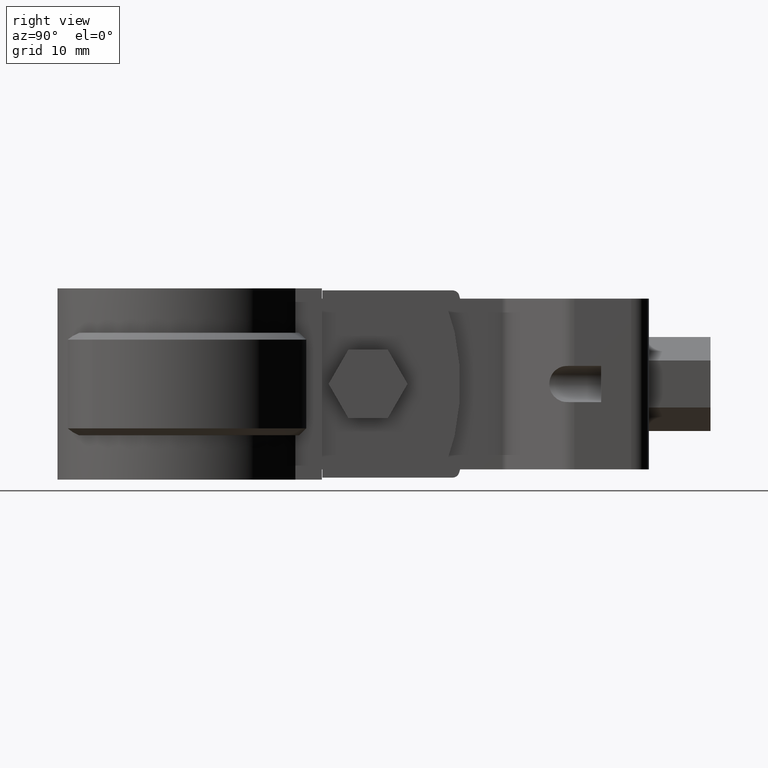
[diagram: clean part render]
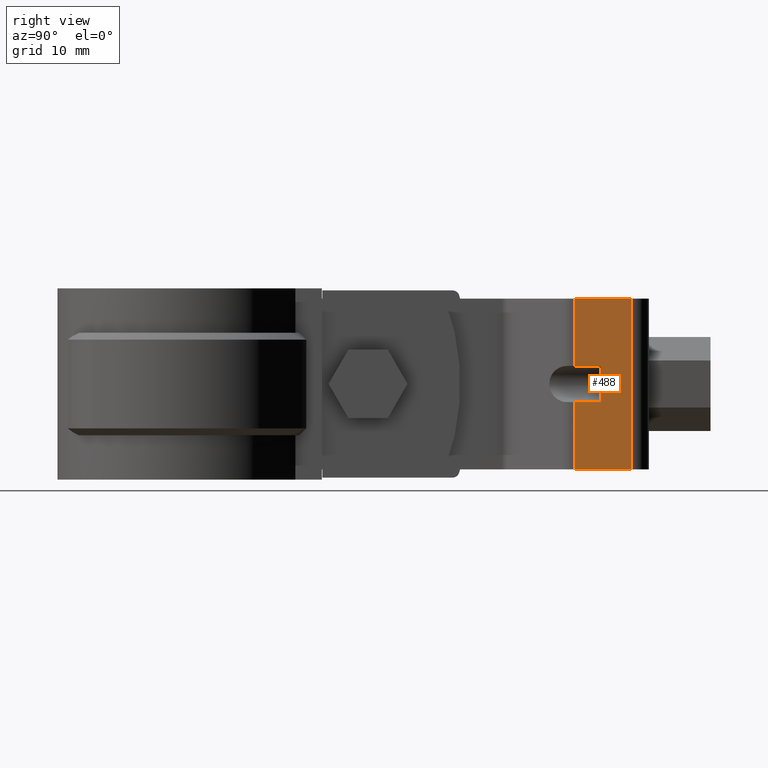
[diagram: same view with one face highlighted and labeled with its STEP entity id]
A machine part, right view. The second image highlights one B-rep face of the part: STEP entity #488.
In plain terms, the highlighted planar face has unit normal (1, -0, 0).
Its self-contained STEP definition (entity closure, byte-faithful):
#488 = ADVANCED_FACE( '', ( #948 ), #949, .T. );
#948 = FACE_OUTER_BOUND( '', #2029, .T. );
#949 = PLANE( '', #2030 );
#2029 = EDGE_LOOP( '', ( #4321, #4322, #4323, #4324, #4325, #4326, #4327, #4328 ) );
#2030 = AXIS2_PLACEMENT_3D( '', #4329, #4330, #4331 );
#4321 = ORIENTED_EDGE( '', *, *, #6369, .T. );
#4322 = ORIENTED_EDGE( '', *, *, #6370, .T. );
#4323 = ORIENTED_EDGE( '', *, *, #6371, .F. );
#4324 = ORIENTED_EDGE( '', *, *, #6330, .F. );
#4325 = ORIENTED_EDGE( '', *, *, #6367, .T. );
#4326 = ORIENTED_EDGE( '', *, *, #6355, .T. );
#4327 = ORIENTED_EDGE( '', *, *, #6365, .F. );
#4328 = ORIENTED_EDGE( '', *, *, #6351, .F. );
#4329 = CARTESIAN_POINT( '', ( 12.2500001062210, 57.6950965623107, 1.74793096663350E-008 ) );
#4330 = DIRECTION( '', ( 1.00000000000000, -7.94778790049312E-010, 3.82133361383914E-011 ) );
#4331 = DIRECTION( '', ( -7.94778790044288E-010, -1.00000000000000, -1.31468003180933E-010 ) );
#6330 = EDGE_CURVE( '', #7484, #7486, #7487, .T. );
#6351 = EDGE_CURVE( '', #7523, #7525, #7526, .T. );
#6355 = EDGE_CURVE( '', #7533, #7531, #7534, .T. );
#6365 = EDGE_CURVE( '', #7525, #7531, #7550, .T. );
#6367 = EDGE_CURVE( '', #7484, #7533, #7552, .T. );
#6369 = EDGE_CURVE( '', #7523, #7554, #7555, .T. );
#6370 = EDGE_CURVE( '', #7554, #7556, #7557, .T. );
#6371 = EDGE_CURVE( '', #7486, #7556, #7558, .T. );
#7484 = VERTEX_POINT( '', #10522 );
#7486 = VERTEX_POINT( '', #10524 );
#7487 = LINE( '', #10525, #10526 );
#7523 = VERTEX_POINT( '', #10572 );
#7525 = VERTEX_POINT( '', #10583 );
#7526 = LINE( '', #10584, #10585 );
#7531 = VERTEX_POINT( '', #10590 );
#7533 = VERTEX_POINT( '', #10592 );
#7534 = LINE( '', #10593, #10594 );
#7550 = LINE( '', #10631, #10632 );
#7552 = LINE( '', #10635, #10636 );
#7554 = VERTEX_POINT( '', #10639 );
#7555 = LINE( '', #10640, #10641 );
#7556 = VERTEX_POINT( '', #10642 );
#7557 = LINE( '', #10643, #10644 );
#7558 = LINE( '', #10645, #10646 );
#10522 = CARTESIAN_POINT( '', ( 12.2500001062210, 57.6950965623107, 1.74793096663350E-008 ) );
#10524 = CARTESIAN_POINT( '', ( 12.2500001128210, 65.9992907631965, 1.85710474776002E-008 ) );
#10525 = CARTESIAN_POINT( '', ( 12.2500001062210, 57.6950965623107, 1.74793096663350E-008 ) );
#10526 = VECTOR( '', #12391, 1000.00000000000 );
#10572 = CARTESIAN_POINT( '', ( 12.2500001067999, 57.6950965643023, -15.1499999825207 ) );
#10583 = CARTESIAN_POINT( '', ( 12.2500001099029, 61.5992907651880, -15.1499999820074 ) );
#10584 = CARTESIAN_POINT( '', ( 12.2500001019551, 51.5992907651880, -15.1499999833221 ) );
#10585 = VECTOR( '', #12429, 1000.00000000000 );
#10590 = CARTESIAN_POINT( '', ( 12.2500001097004, 61.5992907644912, -9.84999998200743 ) );
#10592 = CARTESIAN_POINT( '', ( 12.2500001065974, 57.6950965636056, -9.84999998252072 ) );
#10593 = CARTESIAN_POINT( '', ( 12.2500001017526, 51.5992907644912, -9.84999998332212 ) );
#10594 = VECTOR( '', #12439, 1000.00000000000 );
#10631 = CARTESIAN_POINT( '', ( 12.2500001099640, 61.5992907653986, -16.7499999820074 ) );
#10632 = VECTOR( '', #12450, 1000.00000000000 );
#10635 = CARTESIAN_POINT( '', ( 12.2500001062210, 57.6950965623107, 1.74793096663350E-008 ) );
#10636 = VECTOR( '', #12452, 1000.00000000000 );
#10639 = CARTESIAN_POINT( '', ( 12.2500001071763, 57.6950965655974, -24.9999999825207 ) );
#10640 = CARTESIAN_POINT( '', ( 12.2500001062210, 57.6950965623107, 1.74793096663350E-008 ) );
#10641 = VECTOR( '', #12454, 1000.00000000000 );
#10642 = CARTESIAN_POINT( '', ( 12.2500001137763, 65.9992907664832, -24.9999999814289 ) );
#10643 = CARTESIAN_POINT( '', ( 12.2500001071763, 57.6950965655974, -24.9999999825207 ) );
#10644 = VECTOR( '', #12455, 1000.00000000000 );
#10645 = CARTESIAN_POINT( '', ( 12.2500001128210, 65.9992907631965, 1.85710474776002E-008 ) );
#10646 = VECTOR( '', #12456, 1000.00000000000 );
#12391 = DIRECTION( '', ( 7.94778790044288E-010, 1.00000000000000, 1.31468003180933E-010 ) );
#12429 = DIRECTION( '', ( 7.94778790044288E-010, 1.00000000000000, 1.31468003180933E-010 ) );
#12439 = DIRECTION( '', ( 7.94778790044288E-010, 1.00000000000000, 1.31468003180933E-010 ) );
#12450 = DIRECTION( '', ( -3.82133343923434E-011, -1.31468003150562E-010, 1.00000000000000 ) );
#12452 = DIRECTION( '', ( 3.82133362428794E-011, 1.31468003150562E-010, -1.00000000000000 ) );
#12454 = DIRECTION( '', ( 3.82133362428794E-011, 1.31468003150562E-010, -1.00000000000000 ) );
#12455 = DIRECTION( '', ( 7.94778790044288E-010, 1.00000000000000, 1.31468003180933E-010 ) );
#12456 = DIRECTION( '', ( 3.82133362428794E-011, 1.31468003150562E-010, -1.00000000000000 ) );